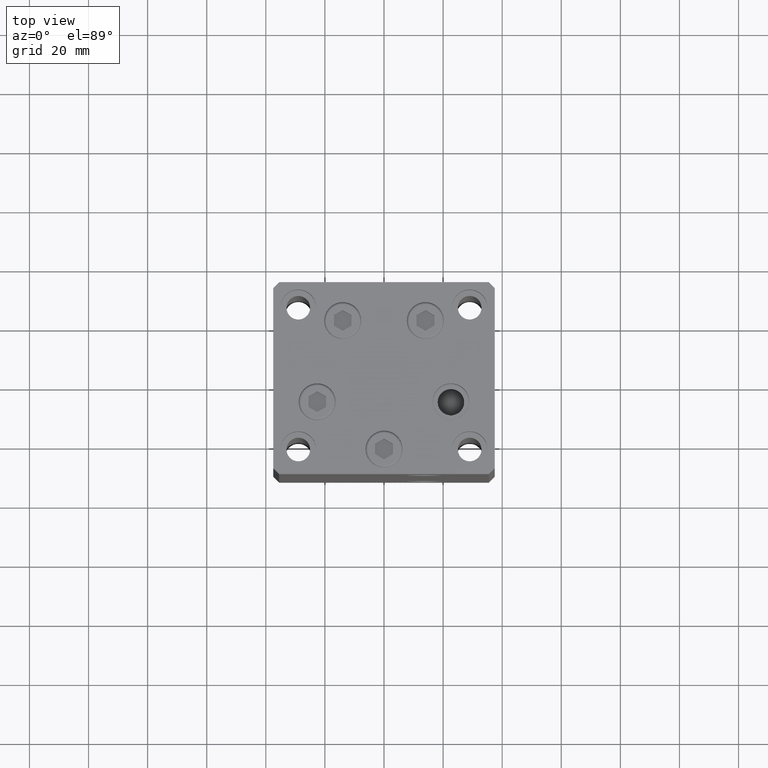
[diagram: clean part render]
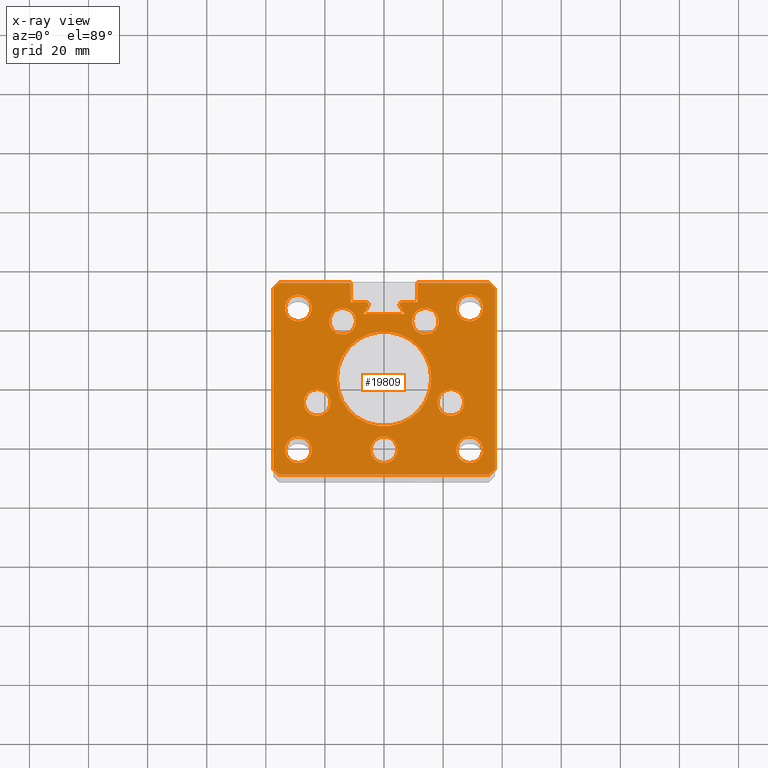
[diagram: x-ray — body ghosted, one internal face saturated and labeled with its STEP entity id]
A machine part, top view, then the same camera in x-ray: the body is ghosted and one INTERNAL B-rep face — a face not visible from any outside direction — is saturated and labeled: STEP entity #19809.
In plain terms, the highlighted planar face has unit normal (0, 0, -1).
Its self-contained STEP definition (entity closure, byte-faithful):
#145 = CARTESIAN_POINT ( 'NONE',  ( -18.49106857963322881, 19.49999999999999645, 136.0000000000000000 ) ) ;
#174 = EDGE_LOOP ( 'NONE', ( #24404, #44747 ) ) ;
#398 = EDGE_CURVE ( 'NONE', #3545, #22793, #2230, .T. ) ;
#675 = ORIENTED_EDGE ( 'NONE', *, *, #6151, .F. ) ;
#919 = AXIS2_PLACEMENT_3D ( 'NONE', #39679, #35571, #8575 ) ;
#957 = VECTOR ( 'NONE', #32496, 1000.000000000000000 ) ;
#1175 = DIRECTION ( 'NONE',  ( 0.000000000000000000, 0.000000000000000000, 1.000000000000000000 ) ) ;
#1200 = CARTESIAN_POINT ( 'NONE',  ( 14.68339468389911495, 8.477461873366666012, 136.0000000000000000 ) ) ;
#1258 = VERTEX_POINT ( 'NONE', #19523 ) ;
#1302 = CARTESIAN_POINT ( 'NONE',  ( -14.68339468389911495, 8.477461873366666012, 136.0000000000000000 ) ) ;
#1341 = CARTESIAN_POINT ( 'NONE',  ( 27.12741699796952233, -8.000000000000000000, 136.0000000000000000 ) ) ;
#1356 = ORIENTED_EDGE ( 'NONE', *, *, #31116, .F. ) ;
#1427 = EDGE_CURVE ( 'NONE', #4926, #32856, #11486, .T. ) ;
#1536 = EDGE_CURVE ( 'NONE', #40810, #3119, #18849, .T. ) ;
#1580 = AXIS2_PLACEMENT_3D ( 'NONE', #9104, #31756, #12953 ) ;
#1601 = VERTEX_POINT ( 'NONE', #6040 ) ;
#1637 = DIRECTION ( 'NONE',  ( 0.000000000000000000, 0.000000000000000000, 1.000000000000000000 ) ) ;
#1796 = EDGE_CURVE ( 'NONE', #14929, #6251, #4213, .T. ) ;
#1941 = CARTESIAN_POINT ( 'NONE',  ( 0.000000000000000000, 0.000000000000000000, 136.0000000000000000 ) ) ;
#2163 = CIRCLE ( 'NONE', #30925, 4.500000000000000000 ) ;
#2230 = LINE ( 'NONE', #40803, #45025 ) ;
#2254 = ORIENTED_EDGE ( 'NONE', *, *, #19627, .F. ) ;
#2619 = DIRECTION ( 'NONE',  ( 0.000000000000000000, 0.000000000000000000, -1.000000000000000000 ) ) ;
#2875 = CARTESIAN_POINT ( 'NONE',  ( 0.000000000000000000, 0.000000000000000000, 136.0000000000000000 ) ) ;
#2897 = VERTEX_POINT ( 'NONE', #21941 ) ;
#2948 = EDGE_CURVE ( 'NONE', #4216, #2897, #7382, .T. ) ;
#3119 = VERTEX_POINT ( 'NONE', #20112 ) ;
#3141 = CARTESIAN_POINT ( 'NONE',  ( -22.62741699796951522, -8.000000000000005329, 136.0000000000000000 ) ) ;
#3386 = AXIS2_PLACEMENT_3D ( 'NONE', #1941, #17640, #29216 ) ;
#3405 = EDGE_LOOP ( 'NONE', ( #43235, #29357 ) ) ;
#3545 = VERTEX_POINT ( 'NONE', #30228 ) ;
#3663 = DIRECTION ( 'NONE',  ( 0.000000000000000000, 0.000000000000000000, 1.000000000000000000 ) ) ;
#3698 = DIRECTION ( 'NONE',  ( 1.000000000000000000, 0.000000000000000000, 0.000000000000000000 ) ) ;
#3840 = ORIENTED_EDGE ( 'NONE', *, *, #46340, .F. ) ;
#3846 = EDGE_CURVE ( 'NONE', #48559, #34786, #41874, .T. ) ;
#3949 = ORIENTED_EDGE ( 'NONE', *, *, #44766, .F. ) ;
#4006 = DIRECTION ( 'NONE',  ( 1.000000000000000000, 0.000000000000000000, 0.000000000000000000 ) ) ;
#4124 = EDGE_CURVE ( 'NONE', #6251, #33570, #7199, .T. ) ;
#4213 = LINE ( 'NONE', #39683, #34438 ) ;
#4216 = VERTEX_POINT ( 'NONE', #46514 ) ;
#4344 = CIRCLE ( 'NONE', #33900, 16.00000000000000000 ) ;
#4539 = ORIENTED_EDGE ( 'NONE', *, *, #1536, .F. ) ;
#4735 = ORIENTED_EDGE ( 'NONE', *, *, #19122, .F. ) ;
#4869 = AXIS2_PLACEMENT_3D ( 'NONE', #12747, #40992, #5771 ) ;
#4926 = VERTEX_POINT ( 'NONE', #20883 ) ;
#5026 = CIRCLE ( 'NONE', #919, 4.500000000000002665 ) ;
#5132 = CARTESIAN_POINT ( 'NONE',  ( 22.62741699796951877, -8.000000000000000000, 136.0000000000000000 ) ) ;
#5586 = CARTESIAN_POINT ( 'NONE',  ( 24.50000000000000711, 23.99999999999999289, 136.0000000000000000 ) ) ;
#5729 = VECTOR ( 'NONE', #19565, 1000.000000000000114 ) ;
#5771 = DIRECTION ( 'NONE',  ( 1.000000000000000000, 0.000000000000000000, 0.000000000000000000 ) ) ;
#6018 = VERTEX_POINT ( 'NONE', #24326 ) ;
#6040 = CARTESIAN_POINT ( 'NONE',  ( -35.49999999999999289, -32.50000000000000000, 136.0000000000000000 ) ) ;
#6151 = EDGE_CURVE ( 'NONE', #36960, #23222, #27911, .T. ) ;
#6242 = DIRECTION ( 'NONE',  ( 1.000000000000000000, 0.000000000000000000, 0.000000000000000000 ) ) ;
#6251 = VERTEX_POINT ( 'NONE', #10418 ) ;
#6544 = DIRECTION ( 'NONE',  ( 0.000000000000000000, 0.000000000000000000, 1.000000000000000000 ) ) ;
#6818 = CARTESIAN_POINT ( 'NONE',  ( 22.62741699796951877, -8.000000000000000000, 136.0000000000000000 ) ) ;
#6819 = CARTESIAN_POINT ( 'NONE',  ( 29.00000000000000355, -24.00000000000000000, 136.0000000000000000 ) ) ;
#7134 = EDGE_CURVE ( 'NONE', #36075, #22021, #45128, .T. ) ;
#7199 = LINE ( 'NONE', #50628, #29595 ) ;
#7382 = CIRCLE ( 'NONE', #38577, 4.500000000000000888 ) ;
#7416 = CIRCLE ( 'NONE', #15647, 4.500000000000000888 ) ;
#7453 = ORIENTED_EDGE ( 'NONE', *, *, #49098, .T. ) ;
#7778 = EDGE_CURVE ( 'NONE', #13148, #39303, #7416, .T. ) ;
#7948 = EDGE_LOOP ( 'NONE', ( #4735, #13130 ) ) ;
#7982 = LINE ( 'NONE', #26781, #5729 ) ;
#8430 = CIRCLE ( 'NONE', #45345, 4.500000000000000888 ) ;
#8485 = EDGE_CURVE ( 'NONE', #44608, #6018, #19793, .T. ) ;
#8575 = DIRECTION ( 'NONE',  ( 1.000000000000000000, 0.000000000000000000, 0.000000000000000000 ) ) ;
#9033 = VERTEX_POINT ( 'NONE', #47282 ) ;
#9104 = CARTESIAN_POINT ( 'NONE',  ( 13.99106857963322348, 19.50000000000000000, 136.0000000000000000 ) ) ;
#9147 = CARTESIAN_POINT ( 'NONE',  ( -22.62741699796951522, -8.000000000000005329, 136.0000000000000000 ) ) ;
#9190 = CARTESIAN_POINT ( 'NONE',  ( 33.50000000000000000, -24.00000000000000000, 136.0000000000000000 ) ) ;
#9628 = EDGE_CURVE ( 'NONE', #13028, #16871, #23485, .T. ) ;
#9636 = CARTESIAN_POINT ( 'NONE',  ( -11.25000000000000178, 32.49999999999999289, 136.0000000000000000 ) ) ;
#9890 = DIRECTION ( 'NONE',  ( 1.000000000000000000, 0.000000000000000000, 0.000000000000000000 ) ) ;
#9944 = VECTOR ( 'NONE', #35286, 1000.000000000000114 ) ;
#10020 = CARTESIAN_POINT ( 'NONE',  ( -29.00000000000000355, -24.00000000000000000, 136.0000000000000000 ) ) ;
#10122 = LINE ( 'NONE', #40713, #957 ) ;
#10315 = EDGE_CURVE ( 'NONE', #47501, #35468, #36425, .T. ) ;
#10393 = EDGE_CURVE ( 'NONE', #1601, #23353, #33081, .T. ) ;
#10418 = CARTESIAN_POINT ( 'NONE',  ( -11.25000000000000178, 25.99999999999999289, 136.0000000000000000 ) ) ;
#10665 = CARTESIAN_POINT ( 'NONE',  ( 0.000000000000000000, 0.000000000000000000, 136.0000000000000000 ) ) ;
#10713 = EDGE_LOOP ( 'NONE', ( #41853, #46025 ) ) ;
#11198 = DIRECTION ( 'NONE',  ( 0.000000000000000000, 0.000000000000000000, 1.000000000000000000 ) ) ;
#11486 = LINE ( 'NONE', #11751, #43448 ) ;
#11661 = AXIS2_PLACEMENT_3D ( 'NONE', #30807, #23091, #38996 ) ;
#11751 = CARTESIAN_POINT ( 'NONE',  ( 11.25000000000000178, 0.000000000000000000, 136.0000000000000000 ) ) ;
#12082 = AXIS2_PLACEMENT_3D ( 'NONE', #9147, #41527, #48452 ) ;
#12093 = VERTEX_POINT ( 'NONE', #1341 ) ;
#12453 = ORIENTED_EDGE ( 'NONE', *, *, #27990, .F. ) ;
#12692 = DIRECTION ( 'NONE',  ( -1.000000000000000000, 0.000000000000000000, 0.000000000000000000 ) ) ;
#12747 = CARTESIAN_POINT ( 'NONE',  ( 2.939152317953648289E-15, -24.00000000000000000, 136.0000000000000000 ) ) ;
#12778 = CIRCLE ( 'NONE', #42321, 0.9333333333340008142 ) ;
#12953 = DIRECTION ( 'NONE',  ( 1.000000000000000000, 0.000000000000000000, 0.000000000000000000 ) ) ;
#13006 = EDGE_LOOP ( 'NONE', ( #23723, #29812 ) ) ;
#13028 = VERTEX_POINT ( 'NONE', #46317 ) ;
#13130 = ORIENTED_EDGE ( 'NONE', *, *, #7778, .F. ) ;
#13148 = VERTEX_POINT ( 'NONE', #32167 ) ;
#14058 = DIRECTION ( 'NONE',  ( 1.000000000000000000, 0.000000000000000000, 0.000000000000000000 ) ) ;
#14187 = DIRECTION ( 'NONE',  ( -2.275047181608927644E-16, -1.000000000000000000, 0.000000000000000000 ) ) ;
#14338 = CARTESIAN_POINT ( 'NONE',  ( 13.99106857963322348, 19.50000000000000000, 136.0000000000000000 ) ) ;
#14618 = CARTESIAN_POINT ( 'NONE',  ( -11.25000000000000178, 32.49999999999999289, 136.0000000000000000 ) ) ;
#14929 = VERTEX_POINT ( 'NONE', #41935 ) ;
#14970 = FACE_BOUND ( 'NONE', #47055, .T. ) ;
#15052 = EDGE_CURVE ( 'NONE', #35774, #3545, #7982, .T. ) ;
#15201 = CARTESIAN_POINT ( 'NONE',  ( 37.50000000000000711, 30.50000000000000000, 136.0000000000000000 ) ) ;
#15502 = CARTESIAN_POINT ( 'NONE',  ( 6.183333333334001480, 25.06666666666599141, 136.0000000000000000 ) ) ;
#15647 = AXIS2_PLACEMENT_3D ( 'NONE', #15878, #1175, #31806 ) ;
#15656 = VECTOR ( 'NONE', #47584, 1000.000000000000000 ) ;
#15878 = CARTESIAN_POINT ( 'NONE',  ( -29.00000000000000355, 23.99999999999999289, 136.0000000000000000 ) ) ;
#16752 = LINE ( 'NONE', #1302, #15656 ) ;
#16871 = VERTEX_POINT ( 'NONE', #21266 ) ;
#17014 = VERTEX_POINT ( 'NONE', #145 ) ;
#17209 = DIRECTION ( 'NONE',  ( 1.000000000000000000, 0.000000000000000000, 0.000000000000000000 ) ) ;
#17355 = VECTOR ( 'NONE', #14058, 1000.000000000000000 ) ;
#17444 = VECTOR ( 'NONE', #14187, 1000.000000000000000 ) ;
#17508 = LINE ( 'NONE', #33180, #17523 ) ;
#17523 = VECTOR ( 'NONE', #42917, 1000.000000000000000 ) ;
#17640 = DIRECTION ( 'NONE',  ( -0.000000000000000000, 0.000000000000000000, 1.000000000000000000 ) ) ;
#17737 = DIRECTION ( 'NONE',  ( 0.000000000000000000, 0.000000000000000000, 1.000000000000000000 ) ) ;
#17879 = DIRECTION ( 'NONE',  ( 1.000000000000000000, 0.000000000000000000, 0.000000000000000000 ) ) ;
#17926 = DIRECTION ( 'NONE',  ( 2.275047181608927644E-16, -1.000000000000000000, 0.000000000000000000 ) ) ;
#18042 = DIRECTION ( 'NONE',  ( -0.7071067811865474617, -0.7071067811865474617, 0.000000000000000000 ) ) ;
#18066 = AXIS2_PLACEMENT_3D ( 'NONE', #6819, #37926, #41773 ) ;
#18396 = DIRECTION ( 'NONE',  ( 0.000000000000000000, 0.000000000000000000, -1.000000000000000000 ) ) ;
#18567 = PLANE ( 'NONE',  #19893 ) ;
#18617 = EDGE_CURVE ( 'NONE', #49185, #32233, #49361, .T. ) ;
#18756 = EDGE_CURVE ( 'NONE', #17014, #26898, #5026, .T. ) ;
#18813 = ORIENTED_EDGE ( 'NONE', *, *, #26889, .T. ) ;
#18849 = CIRCLE ( 'NONE', #47552, 0.9333333333340008142 ) ;
#19122 = EDGE_CURVE ( 'NONE', #39303, #13148, #37898, .T. ) ;
#19158 = DIRECTION ( 'NONE',  ( 0.000000000000000000, 0.000000000000000000, 1.000000000000000000 ) ) ;
#19318 = CARTESIAN_POINT ( 'NONE',  ( -33.50000000000000711, -24.00000000000000000, 136.0000000000000000 ) ) ;
#19523 = CARTESIAN_POINT ( 'NONE',  ( 37.49999999999999289, -30.50000000000000000, 136.0000000000000000 ) ) ;
#19565 = DIRECTION ( 'NONE',  ( -0.7071067811865500152, -0.7071067811865451302, 0.000000000000000000 ) ) ;
#19627 = EDGE_CURVE ( 'NONE', #14929, #40810, #31369, .T. ) ;
#19793 = CIRCLE ( 'NONE', #29633, 4.500000000000000888 ) ;
#19809 = ADVANCED_FACE ( 'NONE', ( #27382, #34583, #50247, #30737, #46384, #14970, #38097, #26793, #33735, #37327, #34495 ), #18567, .F. ) ;
#19836 = VECTOR ( 'NONE', #31326, 1000.000000000000000 ) ;
#19893 = AXIS2_PLACEMENT_3D ( 'NONE', #2875, #2619, #41692 ) ;
#19940 = DIRECTION ( 'NONE',  ( 1.000000000000000000, 0.000000000000000000, 0.000000000000000000 ) ) ;
#20058 = VERTEX_POINT ( 'NONE', #42314 ) ;
#20061 = DIRECTION ( 'NONE',  ( 0.000000000000000000, 1.000000000000000000, 0.000000000000000000 ) ) ;
#20112 = CARTESIAN_POINT ( 'NONE',  ( -5.375042956467946276, 24.59999999999899245, 136.0000000000000000 ) ) ;
#20582 = ORIENTED_EDGE ( 'NONE', *, *, #23456, .F. ) ;
#20883 = CARTESIAN_POINT ( 'NONE',  ( 11.24999999999999467, 32.49999999999999289, 136.0000000000000000 ) ) ;
#20986 = CARTESIAN_POINT ( 'NONE',  ( -4.499999999999997335, -24.00000000000000000, 136.0000000000000000 ) ) ;
#21266 = CARTESIAN_POINT ( 'NONE',  ( 37.50000000000000711, 30.50000000000000000, 136.0000000000000000 ) ) ;
#21291 = CARTESIAN_POINT ( 'NONE',  ( -37.49999999999999289, -30.50000000000000000, 136.0000000000000000 ) ) ;
#21337 = AXIS2_PLACEMENT_3D ( 'NONE', #41252, #6544, #22752 ) ;
#21397 = CARTESIAN_POINT ( 'NONE',  ( -16.00000000000000000, 0.000000000000000000, 136.0000000000000000 ) ) ;
#21455 = CARTESIAN_POINT ( 'NONE',  ( 2.939152317953648289E-15, -24.00000000000000000, 136.0000000000000000 ) ) ;
#21472 = EDGE_CURVE ( 'NONE', #6018, #44608, #8430, .T. ) ;
#21740 = DIRECTION ( 'NONE',  ( 1.000000000000000000, 0.000000000000000000, 0.000000000000000000 ) ) ;
#21776 = EDGE_CURVE ( 'NONE', #25468, #29583, #4344, .T. ) ;
#21941 = CARTESIAN_POINT ( 'NONE',  ( -18.12741699796951522, -8.000000000000005329, 136.0000000000000000 ) ) ;
#22021 = VERTEX_POINT ( 'NONE', #32970 ) ;
#22752 = DIRECTION ( 'NONE',  ( 1.000000000000000000, 0.000000000000000000, 0.000000000000000000 ) ) ;
#22780 = CIRCLE ( 'NONE', #12082, 4.500000000000000888 ) ;
#22793 = VERTEX_POINT ( 'NONE', #21291 ) ;
#22883 = EDGE_CURVE ( 'NONE', #34786, #48559, #44475, .T. ) ;
#23091 = DIRECTION ( 'NONE',  ( 0.000000000000000000, 0.000000000000000000, 1.000000000000000000 ) ) ;
#23222 = VERTEX_POINT ( 'NONE', #20986 ) ;
#23353 = VERTEX_POINT ( 'NONE', #35842 ) ;
#23396 = ORIENTED_EDGE ( 'NONE', *, *, #1427, .T. ) ;
#23456 = EDGE_CURVE ( 'NONE', #35774, #33570, #10122, .T. ) ;
#23485 = LINE ( 'NONE', #39141, #9944 ) ;
#23571 = CARTESIAN_POINT ( 'NONE',  ( 29.00000000000000355, -24.00000000000000000, 136.0000000000000000 ) ) ;
#23723 = ORIENTED_EDGE ( 'NONE', *, *, #21776, .F. ) ;
#24326 = CARTESIAN_POINT ( 'NONE',  ( -24.50000000000000355, -24.00000000000000000, 136.0000000000000000 ) ) ;
#24404 = ORIENTED_EDGE ( 'NONE', *, *, #7134, .F. ) ;
#24673 = EDGE_CURVE ( 'NONE', #16871, #1258, #46289, .T. ) ;
#24691 = DIRECTION ( 'NONE',  ( 0.000000000000000000, 0.000000000000000000, 1.000000000000000000 ) ) ;
#24699 = EDGE_LOOP ( 'NONE', ( #3840, #41917 ) ) ;
#25016 = CARTESIAN_POINT ( 'NONE',  ( 6.876153656360466826, 21.99999999999986855, 136.0000000000000000 ) ) ;
#25367 = CARTESIAN_POINT ( 'NONE',  ( -35.49999999999999289, -32.50000000000000000, 136.0000000000000000 ) ) ;
#25468 = VERTEX_POINT ( 'NONE', #21397 ) ;
#25482 = AXIS2_PLACEMENT_3D ( 'NONE', #46835, #3663, #35026 ) ;
#25542 = DIRECTION ( 'NONE',  ( 0.000000000000000000, 0.000000000000000000, 1.000000000000000000 ) ) ;
#25854 = DIRECTION ( 'NONE',  ( 0.000000000000000000, 0.000000000000000000, -1.000000000000000000 ) ) ;
#26181 = EDGE_CURVE ( 'NONE', #32856, #9033, #17508, .T. ) ;
#26241 = CARTESIAN_POINT ( 'NONE',  ( 0.000000000000000000, 21.99999999999986855, 136.0000000000000000 ) ) ;
#26258 = CARTESIAN_POINT ( 'NONE',  ( -37.49999999999999289, -30.50000000000000000, 136.0000000000000000 ) ) ;
#26646 = VECTOR ( 'NONE', #34452, 1000.000000000000000 ) ;
#26781 = CARTESIAN_POINT ( 'NONE',  ( -35.50000000000000000, 32.49999999999999289, 136.0000000000000000 ) ) ;
#26793 = FACE_BOUND ( 'NONE', #10713, .T. ) ;
#26874 = DIRECTION ( 'NONE',  ( 1.000000000000000000, 0.000000000000000000, 0.000000000000000000 ) ) ;
#26889 = EDGE_CURVE ( 'NONE', #22793, #1601, #30362, .T. ) ;
#26898 = VERTEX_POINT ( 'NONE', #45271 ) ;
#27220 = ORIENTED_EDGE ( 'NONE', *, *, #10393, .T. ) ;
#27382 = FACE_BOUND ( 'NONE', #3405, .T. ) ;
#27435 = DIRECTION ( 'NONE',  ( -0.000000000000000000, -1.000000000000000000, 0.000000000000000000 ) ) ;
#27911 = CIRCLE ( 'NONE', #4869, 4.500000000000000000 ) ;
#27990 = EDGE_CURVE ( 'NONE', #20058, #12093, #33974, .T. ) ;
#28692 = EDGE_CURVE ( 'NONE', #35468, #44172, #44989, .T. ) ;
#28813 = DIRECTION ( 'NONE',  ( 0.000000000000000000, 0.000000000000000000, 1.000000000000000000 ) ) ;
#29063 = DIRECTION ( 'NONE',  ( 1.000000000000000000, 0.000000000000000000, 0.000000000000000000 ) ) ;
#29216 = DIRECTION ( 'NONE',  ( 1.000000000000000000, 0.000000000000000000, 0.000000000000000000 ) ) ;
#29270 = EDGE_LOOP ( 'NONE', ( #46009, #48582, #20582, #43626, #30171, #18813, #27220, #50056, #41183, #44459, #1356, #23396, #31162, #41386, #37498, #47514, #7453, #4539, #2254 ) ) ;
#29347 = ORIENTED_EDGE ( 'NONE', *, *, #39102, .F. ) ;
#29357 = ORIENTED_EDGE ( 'NONE', *, *, #8485, .F. ) ;
#29583 = VERTEX_POINT ( 'NONE', #30359 ) ;
#29595 = VECTOR ( 'NONE', #20061, 1000.000000000000000 ) ;
#29623 = CARTESIAN_POINT ( 'NONE',  ( 37.49999999999999289, -30.50000000000000000, 136.0000000000000000 ) ) ;
#29633 = AXIS2_PLACEMENT_3D ( 'NONE', #43302, #11198, #19940 ) ;
#29812 = ORIENTED_EDGE ( 'NONE', *, *, #49651, .F. ) ;
#30171 = ORIENTED_EDGE ( 'NONE', *, *, #398, .T. ) ;
#30228 = CARTESIAN_POINT ( 'NONE',  ( -37.50000000000000711, 30.50000000000000000, 136.0000000000000000 ) ) ;
#30359 = CARTESIAN_POINT ( 'NONE',  ( 16.00000000000000000, 1.959434878635765131E-15, 136.0000000000000000 ) ) ;
#30362 = LINE ( 'NONE', #26258, #47853 ) ;
#30480 = DIRECTION ( 'NONE',  ( 1.000000000000000000, 0.000000000000000000, 0.000000000000000000 ) ) ;
#30737 = FACE_BOUND ( 'NONE', #7948, .T. ) ;
#30807 = CARTESIAN_POINT ( 'NONE',  ( 29.00000000000000355, 23.99999999999999289, 136.0000000000000000 ) ) ;
#30925 = AXIS2_PLACEMENT_3D ( 'NONE', #21455, #1637, #33268 ) ;
#31116 = EDGE_CURVE ( 'NONE', #4926, #13028, #48195, .T. ) ;
#31162 = ORIENTED_EDGE ( 'NONE', *, *, #26181, .T. ) ;
#31326 = DIRECTION ( 'NONE',  ( 0.4999999999999996114, -0.8660254037844388186, 0.000000000000000000 ) ) ;
#31369 = CIRCLE ( 'NONE', #49404, 0.9333333333340008142 ) ;
#31450 = DIRECTION ( 'NONE',  ( 0.000000000000000000, 0.000000000000000000, -1.000000000000000000 ) ) ;
#31500 = EDGE_CURVE ( 'NONE', #47501, #9033, #12778, .T. ) ;
#31521 = AXIS2_PLACEMENT_3D ( 'NONE', #6818, #34326, #26874 ) ;
#31756 = DIRECTION ( 'NONE',  ( 0.000000000000000000, 0.000000000000000000, 1.000000000000000000 ) ) ;
#31806 = DIRECTION ( 'NONE',  ( 1.000000000000000000, 0.000000000000000000, 0.000000000000000000 ) ) ;
#32167 = CARTESIAN_POINT ( 'NONE',  ( -33.50000000000000711, 23.99999999999999289, 136.0000000000000000 ) ) ;
#32233 = VERTEX_POINT ( 'NONE', #33644 ) ;
#32496 = DIRECTION ( 'NONE',  ( 1.000000000000000000, 0.000000000000000000, 0.000000000000000000 ) ) ;
#32856 = VERTEX_POINT ( 'NONE', #36736 ) ;
#32970 = CARTESIAN_POINT ( 'NONE',  ( 24.50000000000000711, -24.00000000000000000, 136.0000000000000000 ) ) ;
#33081 = LINE ( 'NONE', #25367, #17355 ) ;
#33180 = CARTESIAN_POINT ( 'NONE',  ( 0.000000000000000000, 25.99999999999999289, 136.0000000000000000 ) ) ;
#33268 = DIRECTION ( 'NONE',  ( 1.000000000000000000, 0.000000000000000000, 0.000000000000000000 ) ) ;
#33570 = VERTEX_POINT ( 'NONE', #14618 ) ;
#33644 = CARTESIAN_POINT ( 'NONE',  ( 9.491068579633218150, 19.50000000000000000, 136.0000000000000000 ) ) ;
#33735 = FACE_BOUND ( 'NONE', #24699, .T. ) ;
#33900 = AXIS2_PLACEMENT_3D ( 'NONE', #10665, #36442, #9890 ) ;
#33974 = CIRCLE ( 'NONE', #31521, 4.500000000000000888 ) ;
#34263 = EDGE_CURVE ( 'NONE', #23222, #36960, #2163, .T. ) ;
#34326 = DIRECTION ( 'NONE',  ( 0.000000000000000000, 0.000000000000000000, 1.000000000000000000 ) ) ;
#34420 = CIRCLE ( 'NONE', #1580, 4.500000000000005329 ) ;
#34438 = VECTOR ( 'NONE', #12692, 1000.000000000000000 ) ;
#34452 = DIRECTION ( 'NONE',  ( -1.000000000000000000, 0.000000000000000000, 0.000000000000000000 ) ) ;
#34495 = FACE_BOUND ( 'NONE', #13006, .T. ) ;
#34583 = FACE_BOUND ( 'NONE', #174, .T. ) ;
#34786 = VERTEX_POINT ( 'NONE', #48555 ) ;
#34929 = CARTESIAN_POINT ( 'NONE',  ( -35.50000000000000000, 32.49999999999999289, 136.0000000000000000 ) ) ;
#35026 = DIRECTION ( 'NONE',  ( 1.000000000000000000, 0.000000000000000000, 0.000000000000000000 ) ) ;
#35286 = DIRECTION ( 'NONE',  ( 0.7071067811865500152, -0.7071067811865451302, 0.000000000000000000 ) ) ;
#35468 = VERTEX_POINT ( 'NONE', #25016 ) ;
#35571 = DIRECTION ( 'NONE',  ( 0.000000000000000000, 0.000000000000000000, 1.000000000000000000 ) ) ;
#35774 = VERTEX_POINT ( 'NONE', #34929 ) ;
#35842 = CARTESIAN_POINT ( 'NONE',  ( 35.49999999999999289, -32.50000000000000000, 136.0000000000000000 ) ) ;
#36075 = VERTEX_POINT ( 'NONE', #9190 ) ;
#36425 = LINE ( 'NONE', #1200, #19836 ) ;
#36442 = DIRECTION ( 'NONE',  ( -0.000000000000000000, 0.000000000000000000, 1.000000000000000000 ) ) ;
#36557 = LINE ( 'NONE', #29623, #48279 ) ;
#36633 = CARTESIAN_POINT ( 'NONE',  ( -6.183333333334001480, 25.06666666666599141, 136.0000000000000000 ) ) ;
#36736 = CARTESIAN_POINT ( 'NONE',  ( 11.25000000000000178, 25.99999999999999289, 136.0000000000000000 ) ) ;
#36843 = CIRCLE ( 'NONE', #45877, 4.500000000000000888 ) ;
#36960 = VERTEX_POINT ( 'NONE', #49095 ) ;
#37327 = FACE_OUTER_BOUND ( 'NONE', #29270, .T. ) ;
#37485 = EDGE_LOOP ( 'NONE', ( #3949, #12453 ) ) ;
#37498 = ORIENTED_EDGE ( 'NONE', *, *, #10315, .T. ) ;
#37898 = CIRCLE ( 'NONE', #41189, 4.500000000000000888 ) ;
#37926 = DIRECTION ( 'NONE',  ( 0.000000000000000000, 0.000000000000000000, 1.000000000000000000 ) ) ;
#38097 = FACE_BOUND ( 'NONE', #37485, .T. ) ;
#38179 = CARTESIAN_POINT ( 'NONE',  ( -6.183333333334001480, 25.06666666666599141, 136.0000000000000000 ) ) ;
#38224 = VECTOR ( 'NONE', #17879, 1000.000000000000000 ) ;
#38577 = AXIS2_PLACEMENT_3D ( 'NONE', #3141, #25542, #6242 ) ;
#38996 = DIRECTION ( 'NONE',  ( 1.000000000000000000, 0.000000000000000000, 0.000000000000000000 ) ) ;
#39102 = EDGE_CURVE ( 'NONE', #2897, #4216, #22780, .T. ) ;
#39141 = CARTESIAN_POINT ( 'NONE',  ( 35.50000000000000000, 32.49999999999999289, 136.0000000000000000 ) ) ;
#39231 = DIRECTION ( 'NONE',  ( 0.000000000000000000, 0.000000000000000000, 1.000000000000000000 ) ) ;
#39267 = EDGE_LOOP ( 'NONE', ( #41086, #47354 ) ) ;
#39303 = VERTEX_POINT ( 'NONE', #47570 ) ;
#39508 = ORIENTED_EDGE ( 'NONE', *, *, #2948, .F. ) ;
#39563 = EDGE_LOOP ( 'NONE', ( #29347, #39508 ) ) ;
#39679 = CARTESIAN_POINT ( 'NONE',  ( -13.99106857963322703, 19.49999999999999645, 136.0000000000000000 ) ) ;
#39683 = CARTESIAN_POINT ( 'NONE',  ( 0.000000000000000000, 25.99999999999999289, 136.0000000000000000 ) ) ;
#40713 = CARTESIAN_POINT ( 'NONE',  ( -11.25000000000000178, 32.49999999999999289, 136.0000000000000000 ) ) ;
#40803 = CARTESIAN_POINT ( 'NONE',  ( -37.50000000000000711, 30.50000000000000000, 136.0000000000000000 ) ) ;
#40810 = VERTEX_POINT ( 'NONE', #41787 ) ;
#40872 = DIRECTION ( 'NONE',  ( 1.000000000000000000, 0.000000000000000000, 0.000000000000000000 ) ) ;
#40992 = DIRECTION ( 'NONE',  ( 0.000000000000000000, 0.000000000000000000, 1.000000000000000000 ) ) ;
#41062 = AXIS2_PLACEMENT_3D ( 'NONE', #23571, #39231, #4006 ) ;
#41086 = ORIENTED_EDGE ( 'NONE', *, *, #22883, .F. ) ;
#41118 = EDGE_CURVE ( 'NONE', #32233, #49185, #34420, .T. ) ;
#41183 = ORIENTED_EDGE ( 'NONE', *, *, #24673, .F. ) ;
#41189 = AXIS2_PLACEMENT_3D ( 'NONE', #44728, #28813, #40872 ) ;
#41252 = CARTESIAN_POINT ( 'NONE',  ( -13.99106857963322703, 19.49999999999999645, 136.0000000000000000 ) ) ;
#41386 = ORIENTED_EDGE ( 'NONE', *, *, #31500, .F. ) ;
#41527 = DIRECTION ( 'NONE',  ( 0.000000000000000000, 0.000000000000000000, 1.000000000000000000 ) ) ;
#41692 = DIRECTION ( 'NONE',  ( -1.000000000000000000, 0.000000000000000000, -0.000000000000000000 ) ) ;
#41773 = DIRECTION ( 'NONE',  ( 1.000000000000000000, 0.000000000000000000, 0.000000000000000000 ) ) ;
#41787 = CARTESIAN_POINT ( 'NONE',  ( -5.250000000000000000, 25.06666666666599141, 136.0000000000000000 ) ) ;
#41840 = CIRCLE ( 'NONE', #21337, 4.500000000000002665 ) ;
#41853 = ORIENTED_EDGE ( 'NONE', *, *, #18617, .F. ) ;
#41874 = CIRCLE ( 'NONE', #25482, 4.499999999999997335 ) ;
#41908 = CARTESIAN_POINT ( 'NONE',  ( 18.49106857963322881, 19.50000000000000000, 136.0000000000000000 ) ) ;
#41917 = ORIENTED_EDGE ( 'NONE', *, *, #18756, .F. ) ;
#41919 = DIRECTION ( 'NONE',  ( 0.7071067811865474617, -0.7071067811865474617, 0.000000000000000000 ) ) ;
#41935 = CARTESIAN_POINT ( 'NONE',  ( -6.183333333334001480, 25.99999999999999289, 136.0000000000000000 ) ) ;
#42314 = CARTESIAN_POINT ( 'NONE',  ( 18.12741699796951877, -8.000000000000000000, 136.0000000000000000 ) ) ;
#42321 = AXIS2_PLACEMENT_3D ( 'NONE', #15502, #31450, #42740 ) ;
#42436 = CARTESIAN_POINT ( 'NONE',  ( 5.375042956467948052, 24.59999999999899245, 136.0000000000000000 ) ) ;
#42740 = DIRECTION ( 'NONE',  ( 1.000000000000000000, 0.000000000000000000, 0.000000000000000000 ) ) ;
#42882 = EDGE_CURVE ( 'NONE', #1258, #23353, #36557, .T. ) ;
#42917 = DIRECTION ( 'NONE',  ( -1.000000000000000000, 0.000000000000000000, 0.000000000000000000 ) ) ;
#43235 = ORIENTED_EDGE ( 'NONE', *, *, #21472, .F. ) ;
#43302 = CARTESIAN_POINT ( 'NONE',  ( -29.00000000000000355, -24.00000000000000000, 136.0000000000000000 ) ) ;
#43448 = VECTOR ( 'NONE', #27435, 1000.000000000000000 ) ;
#43626 = ORIENTED_EDGE ( 'NONE', *, *, #15052, .T. ) ;
#44172 = VERTEX_POINT ( 'NONE', #47490 ) ;
#44284 = CIRCLE ( 'NONE', #41062, 4.499999999999997335 ) ;
#44459 = ORIENTED_EDGE ( 'NONE', *, *, #9628, .F. ) ;
#44475 = CIRCLE ( 'NONE', #11661, 4.499999999999997335 ) ;
#44608 = VERTEX_POINT ( 'NONE', #19318 ) ;
#44728 = CARTESIAN_POINT ( 'NONE',  ( -29.00000000000000355, 23.99999999999999289, 136.0000000000000000 ) ) ;
#44747 = ORIENTED_EDGE ( 'NONE', *, *, #47225, .F. ) ;
#44766 = EDGE_CURVE ( 'NONE', #12093, #20058, #36843, .T. ) ;
#44989 = LINE ( 'NONE', #26241, #26646 ) ;
#45025 = VECTOR ( 'NONE', #17926, 1000.000000000000000 ) ;
#45128 = CIRCLE ( 'NONE', #18066, 4.499999999999997335 ) ;
#45261 = AXIS2_PLACEMENT_3D ( 'NONE', #14338, #19158, #3698 ) ;
#45271 = CARTESIAN_POINT ( 'NONE',  ( -9.491068579633225255, 19.49999999999999645, 136.0000000000000000 ) ) ;
#45345 = AXIS2_PLACEMENT_3D ( 'NONE', #10020, #17737, #29063 ) ;
#45877 = AXIS2_PLACEMENT_3D ( 'NONE', #5132, #24691, #17209 ) ;
#46009 = ORIENTED_EDGE ( 'NONE', *, *, #1796, .T. ) ;
#46025 = ORIENTED_EDGE ( 'NONE', *, *, #41118, .F. ) ;
#46289 = LINE ( 'NONE', #15201, #17444 ) ;
#46317 = CARTESIAN_POINT ( 'NONE',  ( 35.50000000000000000, 32.49999999999999289, 136.0000000000000000 ) ) ;
#46340 = EDGE_CURVE ( 'NONE', #26898, #17014, #41840, .T. ) ;
#46384 = FACE_BOUND ( 'NONE', #39563, .T. ) ;
#46514 = CARTESIAN_POINT ( 'NONE',  ( -27.12741699796951877, -8.000000000000005329, 136.0000000000000000 ) ) ;
#46835 = CARTESIAN_POINT ( 'NONE',  ( 29.00000000000000355, 23.99999999999999289, 136.0000000000000000 ) ) ;
#47055 = EDGE_LOOP ( 'NONE', ( #675, #47231 ) ) ;
#47225 = EDGE_CURVE ( 'NONE', #22021, #36075, #44284, .T. ) ;
#47231 = ORIENTED_EDGE ( 'NONE', *, *, #34263, .F. ) ;
#47282 = CARTESIAN_POINT ( 'NONE',  ( 6.183333333334001480, 25.99999999999999289, 136.0000000000000000 ) ) ;
#47354 = ORIENTED_EDGE ( 'NONE', *, *, #3846, .F. ) ;
#47490 = CARTESIAN_POINT ( 'NONE',  ( -6.876153656360466826, 21.99999999999986855, 136.0000000000000000 ) ) ;
#47501 = VERTEX_POINT ( 'NONE', #42436 ) ;
#47514 = ORIENTED_EDGE ( 'NONE', *, *, #28692, .T. ) ;
#47552 = AXIS2_PLACEMENT_3D ( 'NONE', #36633, #25854, #21740 ) ;
#47570 = CARTESIAN_POINT ( 'NONE',  ( -24.50000000000000355, 23.99999999999999289, 136.0000000000000000 ) ) ;
#47584 = DIRECTION ( 'NONE',  ( 0.4999999999999996114, 0.8660254037844388186, 0.000000000000000000 ) ) ;
#47853 = VECTOR ( 'NONE', #41919, 1000.000000000000114 ) ;
#48195 = LINE ( 'NONE', #9636, #38224 ) ;
#48279 = VECTOR ( 'NONE', #18042, 1000.000000000000114 ) ;
#48452 = DIRECTION ( 'NONE',  ( 1.000000000000000000, 0.000000000000000000, 0.000000000000000000 ) ) ;
#48501 = CIRCLE ( 'NONE', #3386, 16.00000000000000000 ) ;
#48555 = CARTESIAN_POINT ( 'NONE',  ( 33.50000000000000000, 23.99999999999999289, 136.0000000000000000 ) ) ;
#48559 = VERTEX_POINT ( 'NONE', #5586 ) ;
#48582 = ORIENTED_EDGE ( 'NONE', *, *, #4124, .T. ) ;
#49095 = CARTESIAN_POINT ( 'NONE',  ( 4.500000000000002665, -24.00000000000000000, 136.0000000000000000 ) ) ;
#49098 = EDGE_CURVE ( 'NONE', #44172, #3119, #16752, .T. ) ;
#49185 = VERTEX_POINT ( 'NONE', #41908 ) ;
#49361 = CIRCLE ( 'NONE', #45261, 4.500000000000005329 ) ;
#49404 = AXIS2_PLACEMENT_3D ( 'NONE', #38179, #18396, #30480 ) ;
#49651 = EDGE_CURVE ( 'NONE', #29583, #25468, #48501, .T. ) ;
#50056 = ORIENTED_EDGE ( 'NONE', *, *, #42882, .F. ) ;
#50247 = FACE_BOUND ( 'NONE', #39267, .T. ) ;
#50628 = CARTESIAN_POINT ( 'NONE',  ( -11.25000000000000178, 0.000000000000000000, 136.0000000000000000 ) ) ;